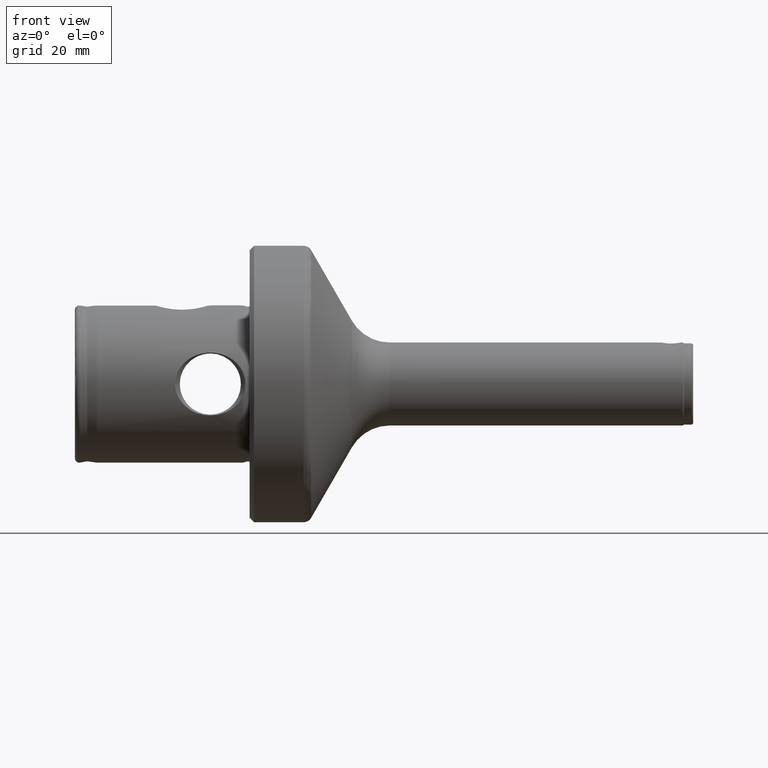
[diagram: clean part render]
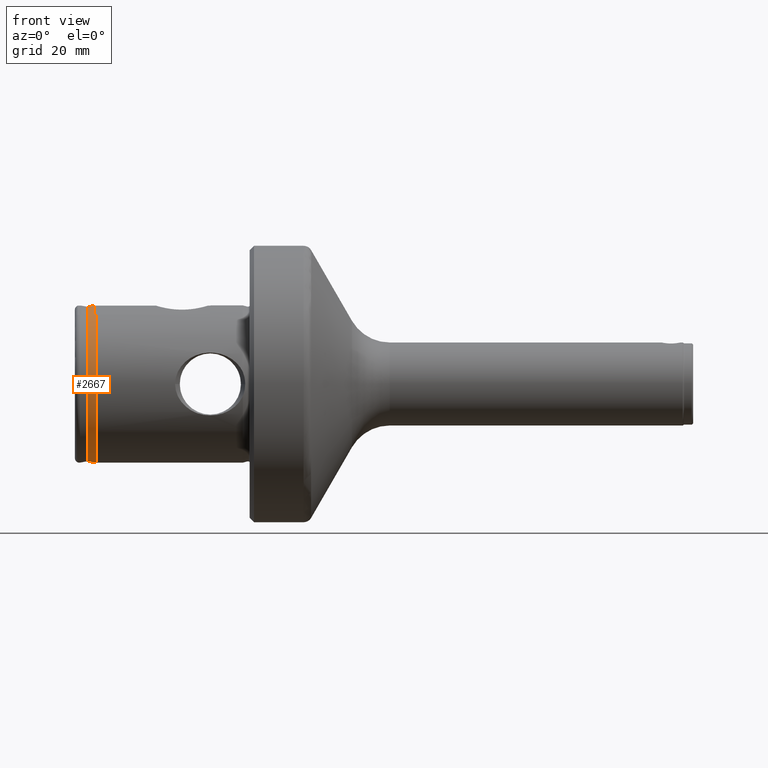
[diagram: same view with one face highlighted and labeled with its STEP entity id]
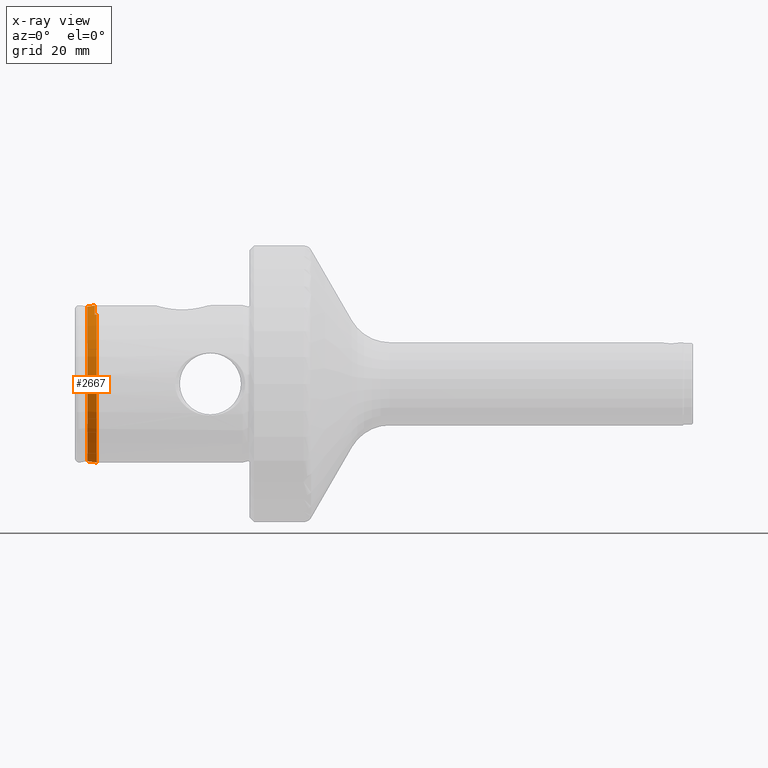
[diagram: x-ray of the same camera — body ghosted, the highlighted face saturated]
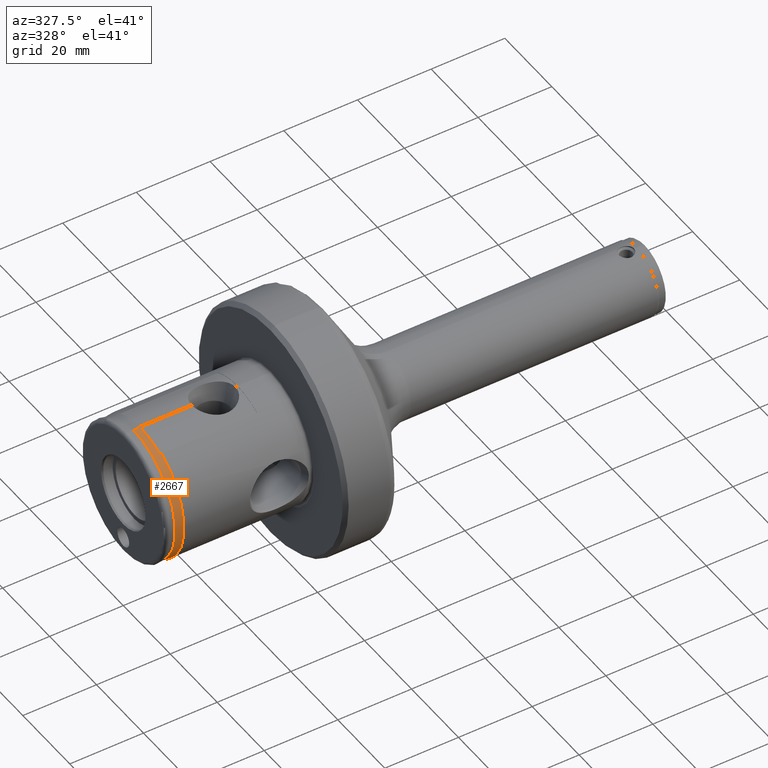
[diagram: same view with one face highlighted and labeled with its STEP entity id]
A machine part, front view. The second image highlights one B-rep face of the part: STEP entity #2667.
The next image is the same camera in x-ray: the body ghosted, the highlighted face saturated — about 0% of this face is hidden behind the body in this view.
A second angle (auxiliary view) of the same face is appended — the face is thin or edge-on in the first view.
In plain terms, the highlighted conical surface has half-angle 8 deg.
Its self-contained STEP definition (entity closure, byte-faithful):
#37 = ORIENTED_EDGE ( 'NONE', *, *, #529, .F. ) ;
#81 = EDGE_CURVE ( 'NONE', #2209, #1585, #690, .T. ) ;
#125 = CIRCLE ( 'NONE', #792, 17.99999999999999600 ) ;
#175 = CARTESIAN_POINT ( 'NONE',  ( 5.000000000000000000, -8.500000000000000000, 15.86663165262242700 ) ) ;
#309 = CARTESIAN_POINT ( 'NONE',  ( 4.561173011721219700, -8.499999999999996400, 15.79663165262243400 ) ) ;
#436 = CARTESIAN_POINT ( 'NONE',  ( 2.822810404226113100, 0.0000000000000000000, 0.0000000000000000000 ) ) ;
#522 = ORIENTED_EDGE ( 'NONE', *, *, #1835, .F. ) ;
#529 = EDGE_CURVE ( 'NONE', #2651, #1605, #2295, .T. ) ;
#543 = CARTESIAN_POINT ( 'NONE',  ( 4.503165590156450900, -1.466782719062482500, 17.88530954530815000 ) ) ;
#580 = EDGE_CURVE ( 'NONE', #1585, #2651, #2405, .T. ) ;
#688 = CARTESIAN_POINT ( 'NONE',  ( 2.822810404226113100, 2.185628119516886500E-015, 17.69401595690456800 ) ) ;
#690 = LINE ( 'NONE', #2564, #3846 ) ;
#741 = DIRECTION ( 'NONE',  ( 0.0000000000000000000, 0.0000000000000000000, 1.000000000000000000 ) ) ;
#792 = AXIS2_PLACEMENT_3D ( 'NONE', #964, #3109, #1262 ) ;
#839 = CARTESIAN_POINT ( 'NONE',  ( 4.511979581276668800, -3.666865337209433800, 17.56800739893154200 ) ) ;
#944 = CONICAL_SURFACE ( 'NONE', #3528, 17.99999999999999600, 0.1396263401595467800 ) ;
#964 = CARTESIAN_POINT ( 'NONE',  ( 5.000000000000000000, 0.0000000000000000000, 0.0000000000000000000 ) ) ;
#1121 = CARTESIAN_POINT ( 'NONE',  ( 2.822810404226113100, 0.0000000000000000000, -17.69401595690456800 ) ) ;
#1145 = CARTESIAN_POINT ( 'NONE',  ( 4.541659314675777100, -7.188126997925746100, 16.49942231177207600 ) ) ;
#1201 = ORIENTED_EDGE ( 'NONE', *, *, #580, .F. ) ;
#1228 = CARTESIAN_POINT ( 'NONE',  ( 5.000000000000000000, 0.0000000000000000000, 0.0000000000000000000 ) ) ;
#1262 = DIRECTION ( 'NONE',  ( 0.0000000000000000000, 0.0000000000000000000, 1.000000000000000000 ) ) ;
#1391 = CARTESIAN_POINT ( 'NONE',  ( 4.629592276591489900, -8.500000000000000000, 15.80755104254830100 ) ) ;
#1448 = CARTESIAN_POINT ( 'NONE',  ( 4.501924119433151200, -0.7337060415290775900, 17.93000000000000000 ) ) ;
#1546 = DIRECTION ( 'NONE',  ( 1.000000000000000000, 0.0000000000000000000, 0.0000000000000000000 ) ) ;
#1585 = VERTEX_POINT ( 'NONE', #3822 ) ;
#1605 = VERTEX_POINT ( 'NONE', #3237 ) ;
#1685 = ORIENTED_EDGE ( 'NONE', *, *, #2596, .T. ) ;
#1709 = CARTESIAN_POINT ( 'NONE',  ( 4.766431990659279800, -8.500000000000000000, 15.82938240072041400 ) ) ;
#1718 = VERTEX_POINT ( 'NONE', #1121 ) ;
#1821 = CARTESIAN_POINT ( 'NONE',  ( 5.000000000000000000, 0.0000000000000000000, -17.99999999999999600 ) ) ;
#1835 = EDGE_CURVE ( 'NONE', #1718, #2209, #2922, .T. ) ;
#1876 = VERTEX_POINT ( 'NONE', #2589 ) ;
#2014 = CARTESIAN_POINT ( 'NONE',  ( 4.922143490562184800, -8.500000000000000000, 15.85421841059769400 ) ) ;
#2116 = EDGE_LOOP ( 'NONE', ( #2535, #522, #1685, #2861, #37, #1201 ) ) ;
#2149 = LINE ( 'NONE', #1821, #2959 ) ;
#2150 = DIRECTION ( 'NONE',  ( 0.0000000000000000000, 0.0000000000000000000, -1.000000000000000000 ) ) ;
#2209 = VERTEX_POINT ( 'NONE', #688 ) ;
#2295 = B_SPLINE_CURVE_WITH_KNOTS ( 'NONE', 3,
 ( #3527, #1391, #3236, #1709, #3837, #2014, #175 ),
 .UNSPECIFIED., .F., .F.,
 ( 4, 3, 4 ),
 ( 0.005382555537049008400, 0.005590410817593495200, 0.005826930303133250400 ),
 .UNSPECIFIED. ) ;
#2405 = B_SPLINE_CURVE_WITH_KNOTS ( 'NONE', 3,
 ( #2942, #1448, #543, #2673, #839, #2988, #1145, #3294 ),
 .UNSPECIFIED., .F., .F.,
 ( 4, 2, 2, 4 ),
 ( 0.008809959860789792800, 0.01101086519072195400, 0.01321177052065411300, 0.01761358118051843300 ),
 .UNSPECIFIED. ) ;
#2535 = ORIENTED_EDGE ( 'NONE', *, *, #81, .F. ) ;
#2564 = CARTESIAN_POINT ( 'NONE',  ( 5.000000000000000000, 2.204364238465235000E-015, 17.99999999999999600 ) ) ;
#2577 = DIRECTION ( 'NONE',  ( -1.000000000000000000, -0.0000000000000000000, -0.0000000000000000000 ) ) ;
#2589 = CARTESIAN_POINT ( 'NONE',  ( 5.000000000000000000, 2.204364238465235000E-015, -17.99999999999999600 ) ) ;
#2596 = EDGE_CURVE ( 'NONE', #1718, #1876, #2149, .T. ) ;
#2651 = VERTEX_POINT ( 'NONE', #309 ) ;
#2666 = FACE_OUTER_BOUND ( 'NONE', #2116, .T. ) ;
#2667 = ADVANCED_FACE ( 'NONE', ( #2666 ), #944, .T. ) ;
#2673 = CARTESIAN_POINT ( 'NONE',  ( 4.508174742434701600, -2.931655298299229400, 17.70498212726888100 ) ) ;
#2727 = EDGE_CURVE ( 'NONE', #1876, #1605, #125, .T. ) ;
#2861 = ORIENTED_EDGE ( 'NONE', *, *, #2727, .T. ) ;
#2865 = DIRECTION ( 'NONE',  ( 0.9902680687415703600, 1.704378926181561200E-017, 0.1391731009600658800 ) ) ;
#2922 = CIRCLE ( 'NONE', #3551, 17.69401595690456800 ) ;
#2942 = CARTESIAN_POINT ( 'NONE',  ( 4.501924119433152100, 1.317146921704914900E-015, 17.93000000000000000 ) ) ;
#2959 = VECTOR ( 'NONE', #3637, 999.9999999999998900 ) ;
#2988 = CARTESIAN_POINT ( 'NONE',  ( 4.526961478556947000, -5.815333669717912100, 17.02861748603704200 ) ) ;
#3109 = DIRECTION ( 'NONE',  ( -1.000000000000000000, -0.0000000000000000000, -0.0000000000000000000 ) ) ;
#3236 = CARTESIAN_POINT ( 'NONE',  ( 4.698011937138928400, -8.500000000000000000, 15.81846795350520200 ) ) ;
#3237 = CARTESIAN_POINT ( 'NONE',  ( 5.000000000000000000, -8.500000000000000000, 15.86663165262242700 ) ) ;
#3294 = CARTESIAN_POINT ( 'NONE',  ( 4.561173011721219700, -8.499999999999996400, 15.79663165262243400 ) ) ;
#3527 = CARTESIAN_POINT ( 'NONE',  ( 4.561173011721219700, -8.499999999999996400, 15.79663165262243400 ) ) ;
#3528 = AXIS2_PLACEMENT_3D ( 'NONE', #1228, #1546, #2150 ) ;
#3551 = AXIS2_PLACEMENT_3D ( 'NONE', #436, #2577, #741 ) ;
#3637 = DIRECTION ( 'NONE',  ( 0.9902680687415703600, 0.0000000000000000000, -0.1391731009600658800 ) ) ;
#3822 = CARTESIAN_POINT ( 'NONE',  ( 4.501924119433152100, 1.317146921704914900E-015, 17.93000000000000000 ) ) ;
#3837 = CARTESIAN_POINT ( 'NONE',  ( 4.844287486133800300, -8.500000000000000000, 15.84180200070681500 ) ) ;
#3846 = VECTOR ( 'NONE', #2865, 999.9999999999998900 ) ;